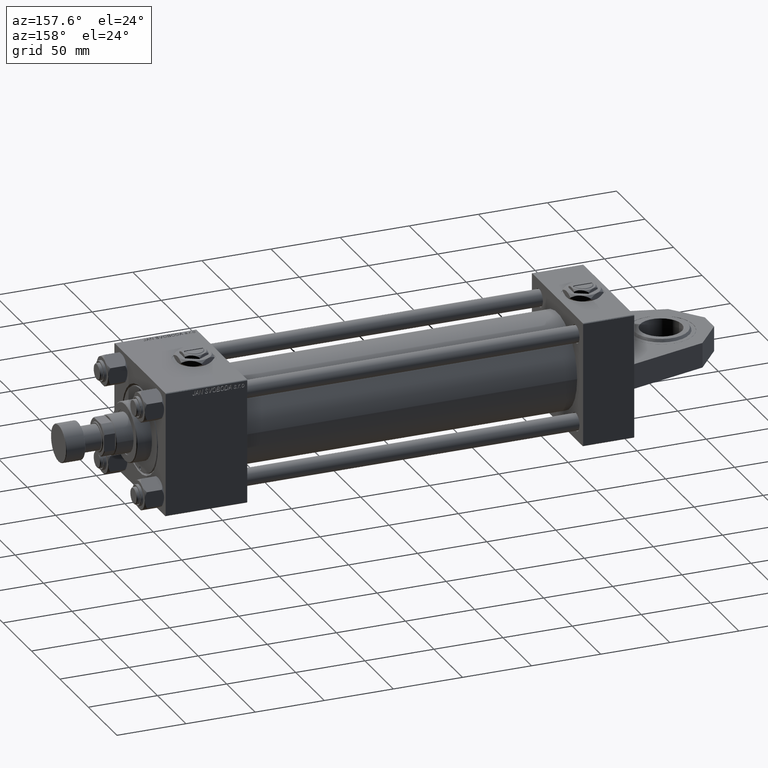
[diagram: clean part render]
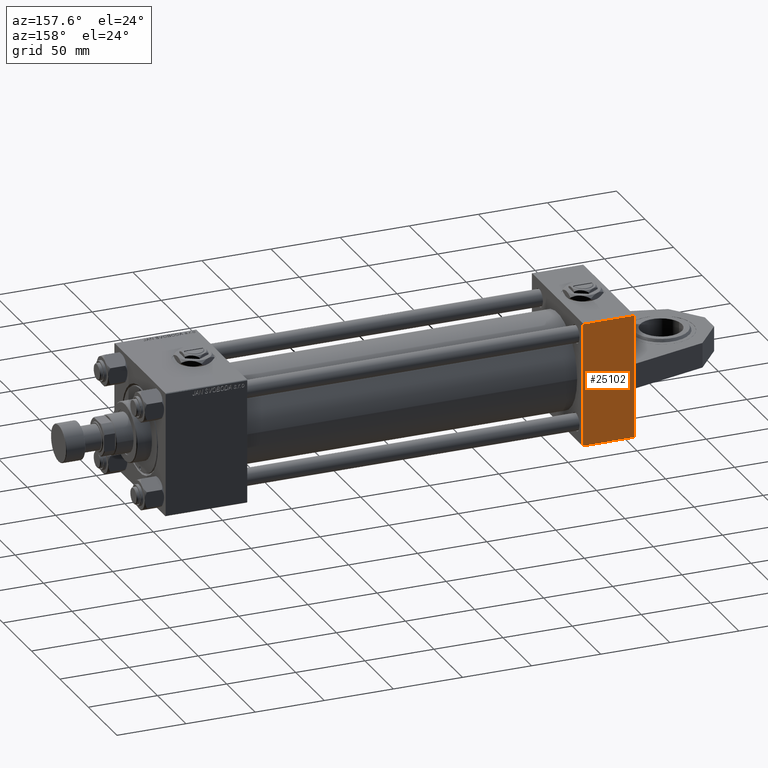
[diagram: same view with one face highlighted and labeled with its STEP entity id]
A machine part, auxiliary view. The second image highlights one B-rep face of the part: STEP entity #25102.
In plain terms, the highlighted planar face has unit normal (0, 1, 0).
Its self-contained STEP definition (entity closure, byte-faithful):
#216 = VERTEX_POINT ( 'NONE', #43929 ) ;
#740 = CARTESIAN_POINT ( 'NONE',  ( 37.00000000000000000, -44.49999999999995737, -45.00000000000000000 ) ) ;
#1575 = DIRECTION ( 'NONE',  ( 1.000000000000000000, 0.000000000000000000, 0.000000000000000000 ) ) ;
#5418 = EDGE_CURVE ( 'NONE', #45462, #12061, #49506, .T. ) ;
#6513 = CARTESIAN_POINT ( 'NONE',  ( 0.000000000000000000, 44.49999999999998579, -44.99999999999998579 ) ) ;
#6771 = DIRECTION ( 'NONE',  ( 0.000000000000000000, 1.000000000000000000, 1.541976423090495880E-16 ) ) ;
#6937 = CARTESIAN_POINT ( 'NONE',  ( 37.00000000000000000, 44.49999999999998579, -44.99999999999998579 ) ) ;
#8128 = VERTEX_POINT ( 'NONE', #6513 ) ;
#8342 = LINE ( 'NONE', #40636, #28406 ) ;
#8986 = CARTESIAN_POINT ( 'NONE',  ( 37.00000000000000000, 44.99999999999998579, -44.99999999999998579 ) ) ;
#9278 = CARTESIAN_POINT ( 'NONE',  ( 37.00000000000000000, 44.49999999999998579, -44.99999999999998579 ) ) ;
#10114 = CARTESIAN_POINT ( 'NONE',  ( 0.000000000000000000, -9.000000000000000000, -45.00000000000000000 ) ) ;
#12061 = VERTEX_POINT ( 'NONE', #740 ) ;
#12465 = ORIENTED_EDGE ( 'NONE', *, *, #50440, .T. ) ;
#13732 = VERTEX_POINT ( 'NONE', #49853 ) ;
#14824 = VECTOR ( 'NONE', #50384, 1000.000000000000000 ) ;
#18269 = ORIENTED_EDGE ( 'NONE', *, *, #39051, .T. ) ;
#19607 = LINE ( 'NONE', #19865, #25251 ) ;
#19865 = CARTESIAN_POINT ( 'NONE',  ( 0.000000000000000000, 44.99999999999998579, -44.99999999999998579 ) ) ;
#21975 = EDGE_CURVE ( 'NONE', #13732, #216, #8342, .T. ) ;
#22557 = AXIS2_PLACEMENT_3D ( 'NONE', #40368, #39598, #6771 ) ;
#24141 = CARTESIAN_POINT ( 'NONE',  ( 0.000000000000000000, -44.49999999999998579, -45.00000000000000000 ) ) ;
#24460 = ORIENTED_EDGE ( 'NONE', *, *, #5418, .T. ) ;
#24625 = DIRECTION ( 'NONE',  ( 0.000000000000000000, -1.000000000000000000, -1.541976423090495633E-16 ) ) ;
#25102 = ADVANCED_FACE ( 'NONE', ( #27314 ), #47823, .T. ) ;
#25251 = VECTOR ( 'NONE', #52124, 1000.000000000000000 ) ;
#27314 = FACE_OUTER_BOUND ( 'NONE', #37231, .T. ) ;
#27626 = DIRECTION ( 'NONE',  ( -1.000000000000000000, 0.000000000000000000, 0.000000000000000000 ) ) ;
#27634 = EDGE_CURVE ( 'NONE', #8128, #46996, #19607, .T. ) ;
#28371 = EDGE_CURVE ( 'NONE', #12061, #216, #43887, .T. ) ;
#28406 = VECTOR ( 'NONE', #24625, 1000.000000000000000 ) ;
#29347 = LINE ( 'NONE', #10114, #14824 ) ;
#31598 = VECTOR ( 'NONE', #46304, 1000.000000000000000 ) ;
#33939 = CARTESIAN_POINT ( 'NONE',  ( 0.000000000000000000, 9.000000000000000000, -45.00000000000000000 ) ) ;
#37231 = EDGE_LOOP ( 'NONE', ( #51233, #18269, #24460, #44993, #38609, #12465 ) ) ;
#38609 = ORIENTED_EDGE ( 'NONE', *, *, #21975, .F. ) ;
#39051 = EDGE_CURVE ( 'NONE', #8128, #45462, #45558, .T. ) ;
#39598 = DIRECTION ( 'NONE',  ( 0.000000000000000000, 1.541976423090495880E-16, -1.000000000000000000 ) ) ;
#40368 = CARTESIAN_POINT ( 'NONE',  ( 37.00000000000000000, 44.99999999999998579, -44.99999999999998579 ) ) ;
#40636 = CARTESIAN_POINT ( 'NONE',  ( 0.000000000000000000, 44.99999999999998579, -44.99999999999998579 ) ) ;
#43887 = LINE ( 'NONE', #24141, #46517 ) ;
#43929 = CARTESIAN_POINT ( 'NONE',  ( 0.000000000000000000, -44.49999999999995737, -45.00000000000000000 ) ) ;
#44993 = ORIENTED_EDGE ( 'NONE', *, *, #28371, .T. ) ;
#45462 = VERTEX_POINT ( 'NONE', #6937 ) ;
#45558 = LINE ( 'NONE', #9278, #50338 ) ;
#46304 = DIRECTION ( 'NONE',  ( 0.000000000000000000, -1.000000000000000000, -1.541976423090495633E-16 ) ) ;
#46517 = VECTOR ( 'NONE', #27626, 1000.000000000000000 ) ;
#46996 = VERTEX_POINT ( 'NONE', #33939 ) ;
#47823 = PLANE ( 'NONE',  #22557 ) ;
#49506 = LINE ( 'NONE', #8986, #31598 ) ;
#49853 = CARTESIAN_POINT ( 'NONE',  ( 0.000000000000000000, -8.999999999999987566, -44.99999999999999289 ) ) ;
#50338 = VECTOR ( 'NONE', #1575, 1000.000000000000000 ) ;
#50384 = DIRECTION ( 'NONE',  ( 0.000000000000000000, 1.000000000000000000, 0.000000000000000000 ) ) ;
#50440 = EDGE_CURVE ( 'NONE', #13732, #46996, #29347, .T. ) ;
#51233 = ORIENTED_EDGE ( 'NONE', *, *, #27634, .F. ) ;
#52124 = DIRECTION ( 'NONE',  ( 0.000000000000000000, -1.000000000000000000, -1.541976423090495633E-16 ) ) ;